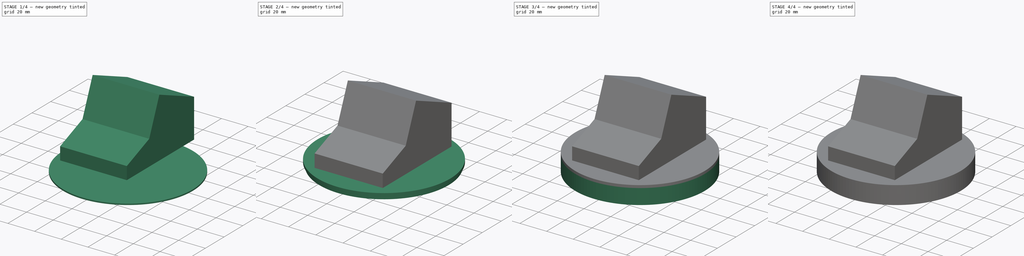
[diagram: build sequence overview — one tinted view per stage of 4, left to right]
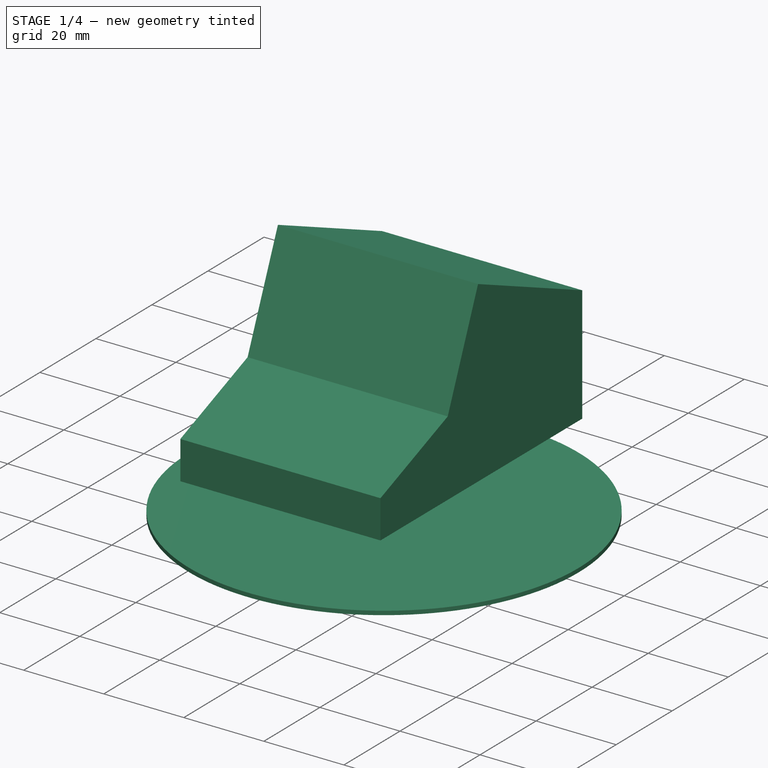
[diagram: stage 1 of 4 — iso view after this stage's code; geometry added in this stage tinted green]
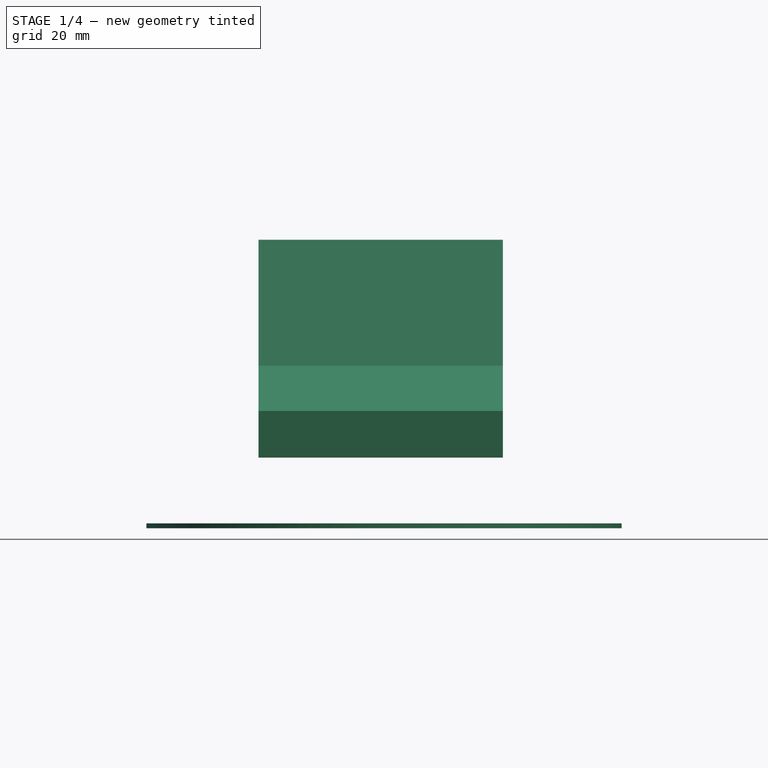
[diagram: stage 1 of 4 — front view after this stage's code; geometry added in this stage tinted green]
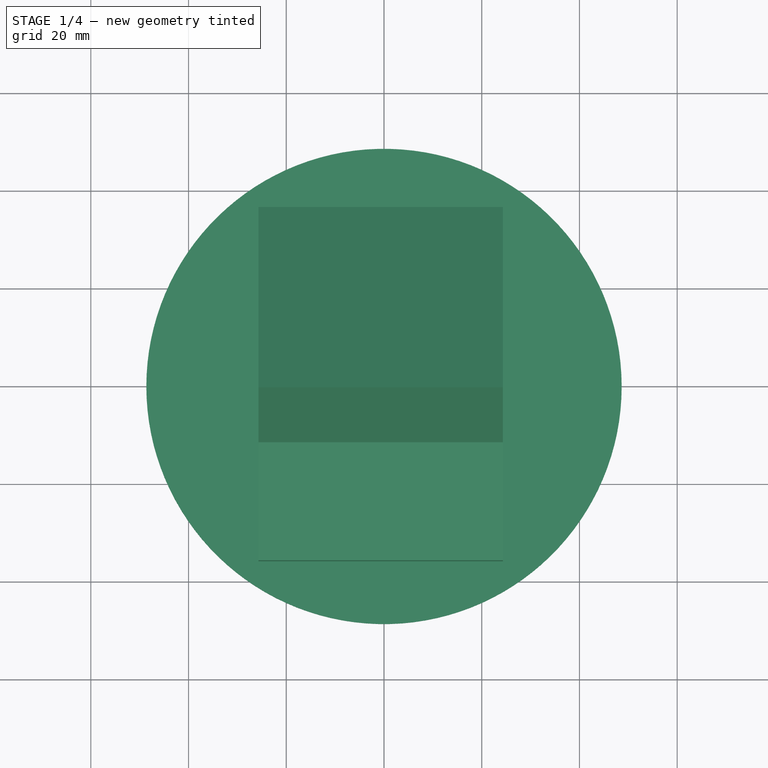
[diagram: stage 1 of 4 — top view after this stage's code; geometry added in this stage tinted green]
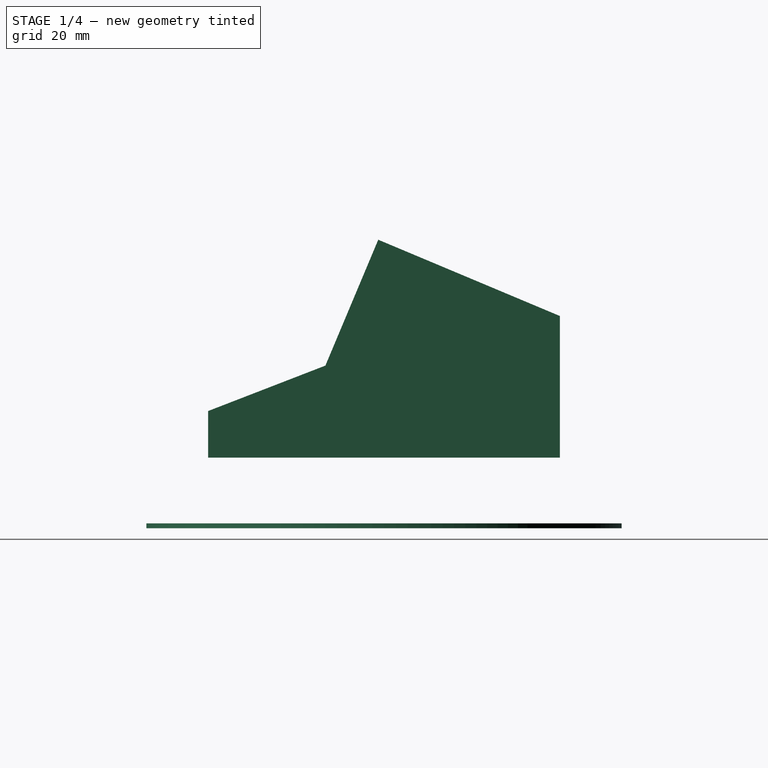
[diagram: stage 1 of 4 — right view after this stage's code; geometry added in this stage tinted green]
FCSTD DOCUMENT  (FreeCAD 0.20R29603 (Git))
Label: Picodoro
License: All rights reserved
LicenseURL: http://en.wikipedia.org/wiki/All_rights_reserved
objects: Sketcher::SketchObject×8, PartDesign::Pad×7, PartDesign::Plane×5, PartDesign::Body×3, PartDesign::PolarPattern×2, Spreadsheet::Sheet×1, PartDesign::Pocket×1
note: 34 computed .brp shape members not serialized (recipe doc carries the construction recipe); baked Part::Feature solids carry a one-line shape summary decoded from their .brp

FEATURE [Spreadsheet::Sheet] Spreadsheet  label="ss"
  cells = A1=Name; B1=Unit; A2=disp_pcb_width; B2(disp_pcb_width)==40.64mm; A3=disp_height; B3(disp_height)==16.256mm; A4=disp_hole_size; B4(disp_hole_size)==3.3mm; A5=disp_hole_x; B5(disp_hole_x)==17.78mm; A6=disp_hole_y; B6(disp_hole_y)==11.43mm; A7=disp_clearance; B7(disp_clearance)==0.3mm; A8=disp_extra_width; B8(disp_extra_width)==4mm; A9=np_height; B9(np_height)==10.2mm; A10=cherry_len; B10(cherry_len)==14mm; A11=disp_pcb_height; B11(disp_pcb_height)==27.94mm
FEATURE [Sketcher::SketchObject] Sketch
  FullyConstrained = true
  MapMode = 5
  Support = -> [XY_Plane]
  expr: .Constraints.BottomDiameter = 2 * (Spreadsheet.disp_extra_width * 2 + Spreadsheet.disp_pcb_width)
  sketch-geometry (1):
    g0: Circle CenterX=0 CenterY=0 CenterZ=0 NormalX=0 NormalY=0 NormalZ=1 AngleXU=0 Radius=48.64
  constraints (2):
    c: Coincident(g0,g-1)
    c: Diameter(g0) = 97.28  'BottomDiameter'
FEATURE [PartDesign::Pad] Pad  label="Bottom"
  Direction = (0,0,1)
  Length = 1
  Length2 = 10
  Profile = -> Sketch
  ReferenceAxis = -> Sketch [N_Axis]
  Refine = true
  Type = 0
FEATURE [PartDesign::Body] Body001  label="LED_Lid"
  Group = -> [DatumPlane002,Sketch004,Pad004,Sketch005,Pad005,Sketch006,Pocket,PolarPattern001]
  Origin = -> Origin001
  Tip = -> PolarPattern001
FEATURE [PartDesign::Plane] DatumPlane003  label="SkelBottomDatum"
  AttachmentOffset = pos=(0,0,13.5) rot=(0,0,1;0rad)
  Length = 62.7613
  MapMode = 5
  Placement = pos=(0,0,13.5) rot=(0,0,1;0rad)
  ResizeMode = 0
  Support = -> [XY_Plane002]
  Width = 84.0813
  expr: .AttachmentOffset.Base.z = Pad001.Length + <<Bottom>>.Length + Pad004.Length
FEATURE [PartDesign::Plane] DatumPlane004
  AttachmentOffset = pos=(0,0,24.32) rot=(0,0,1;0rad)
  Length = 87.5585
  MapMode = 5
  Placement = pos=(24.32,-5.4e-15,5.4e-15) rot=(0.57735,0.57735,0.57735;2.0944rad)
  ResizeMode = 0
  Support = -> [YZ_Plane002]
  Width = 99.6097
  expr: .AttachmentOffset.Base.z = Spreadsheet.disp_pcb_width / 2 + Spreadsheet.disp_extra_width
FEATURE [Sketcher::SketchObject] Sketch007
  FullyConstrained = false
  MapMode = 5
  Placement = pos=(24.32,-5.4e-15,5.4e-15) rot=(0.57735,0.57735,0.57735;2.0944rad)
  Support = -> [DatumPlane004]
  expr: Constraints[4] = Spreadsheet.disp_pcb_height
  sketch-geometry (6):
    g0: LineSegment StartX=-1.17563 StartY=59.0511 StartZ=0 EndX=-11.9932 EndY=33.2902 EndZ=0
    g1: LineSegment StartX=-11.9932 StartY=33.2902 StartZ=0 EndX=-36 EndY=23.9913 EndZ=0
    g2: LineSegment StartX=-36 StartY=23.9913 StartZ=0 EndX=-36 EndY=14.4552 EndZ=0
    g3: LineSegment StartX=-36 StartY=14.4552 StartZ=0 EndX=36 EndY=14.4552 EndZ=0
    g4: LineSegment StartX=-1.17563 StartY=59.0511 StartZ=0 EndX=36 EndY=43.4403 EndZ=0
    g5: LineSegment StartX=36 StartY=43.4403 StartZ=0 EndX=36 EndY=14.4552 EndZ=0
  constraints (12):
    c: Coincident(g1,g0)
    c: Coincident(g2,g1)
    c: Vertical(g2)
    c: Coincident(g3,g2)
    c: Distance(g0) = 27.94
    c: Distance(g3) = 72
    c: Coincident(g4,g0)
    c: Coincident(g5,g4)
    c: Coincident(g5,g3)
    c: Perpendicular(g4,g0)
    c: Perpendicular(g3,g5)
    c: Symmetric(g3,g2,g-2)
FEATURE [PartDesign::Pad] Pad006
  Direction = (1,-1e-16,1e-16)
  Length = 50
  Length2 = 10
  Placement = pos=(24.32,-5.4e-15,5.4e-15) rot=(0.57735,0.57735,0.57735;2.0944rad)
  Profile = -> Sketch007
  ReferenceAxis = -> Sketch007 [N_Axis]
  Refine = true
  Reversed = true
  Type = 0
FEATURE [PartDesign::Body] Body002  label="Skeleton"
  Group = -> [DatumPlane003,DatumPlane004,Sketch007,Pad006]
  Origin = -> Origin002
  Tip = -> Pad006
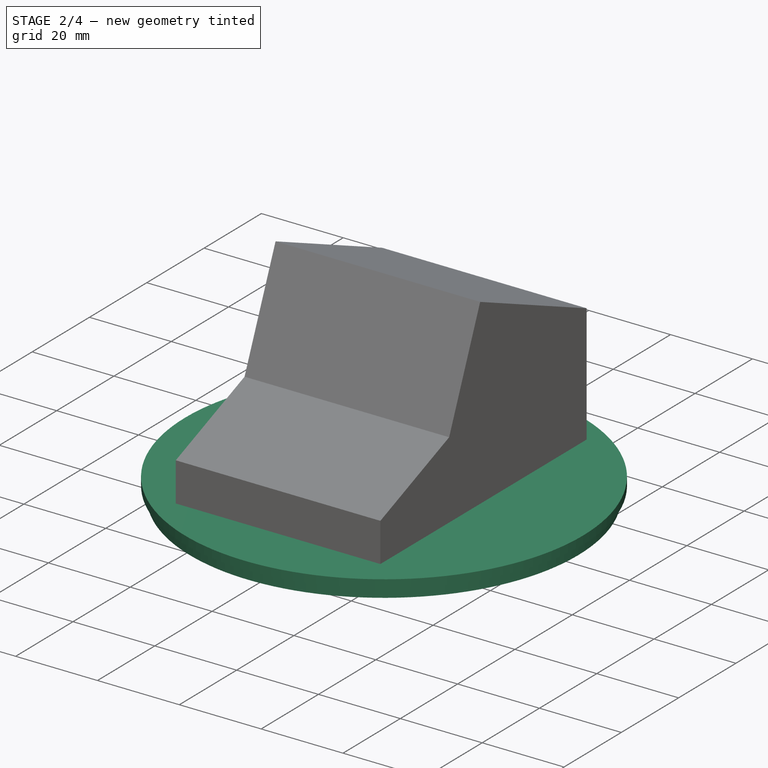
[diagram: stage 2 of 4 — iso view after this stage's code; geometry added in this stage tinted green]
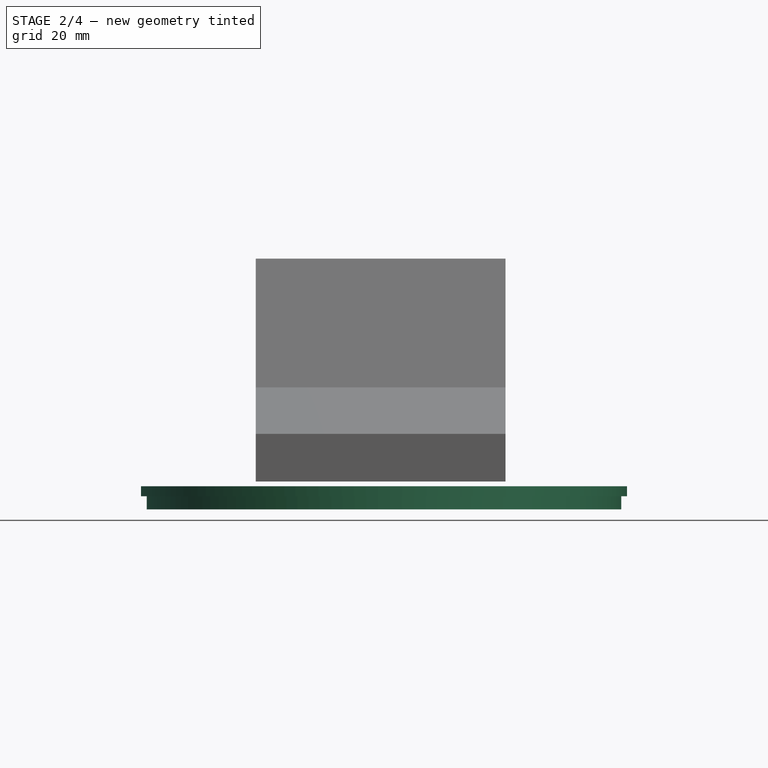
[diagram: stage 2 of 4 — front view after this stage's code; geometry added in this stage tinted green]
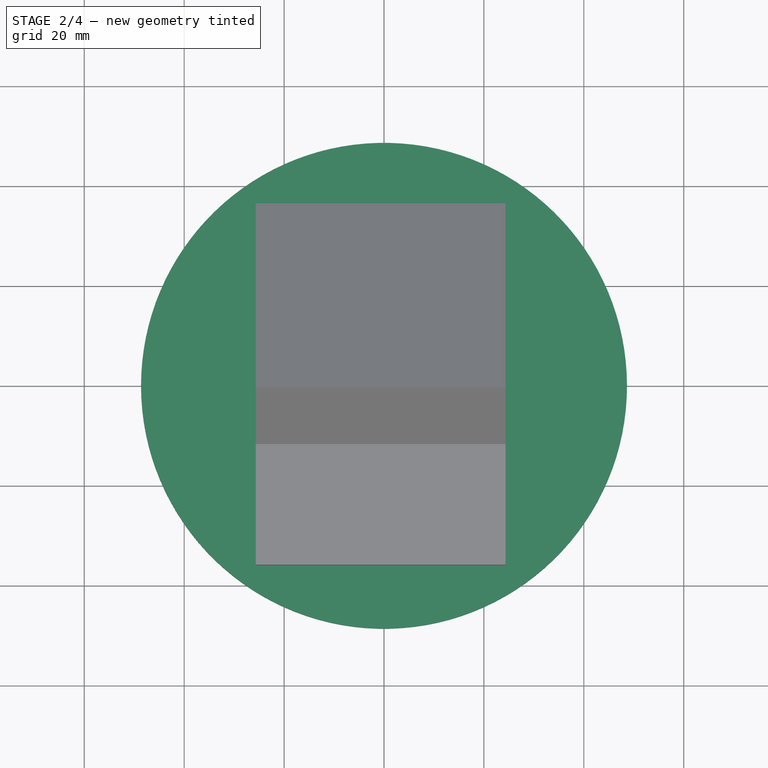
[diagram: stage 2 of 4 — top view after this stage's code; geometry added in this stage tinted green]
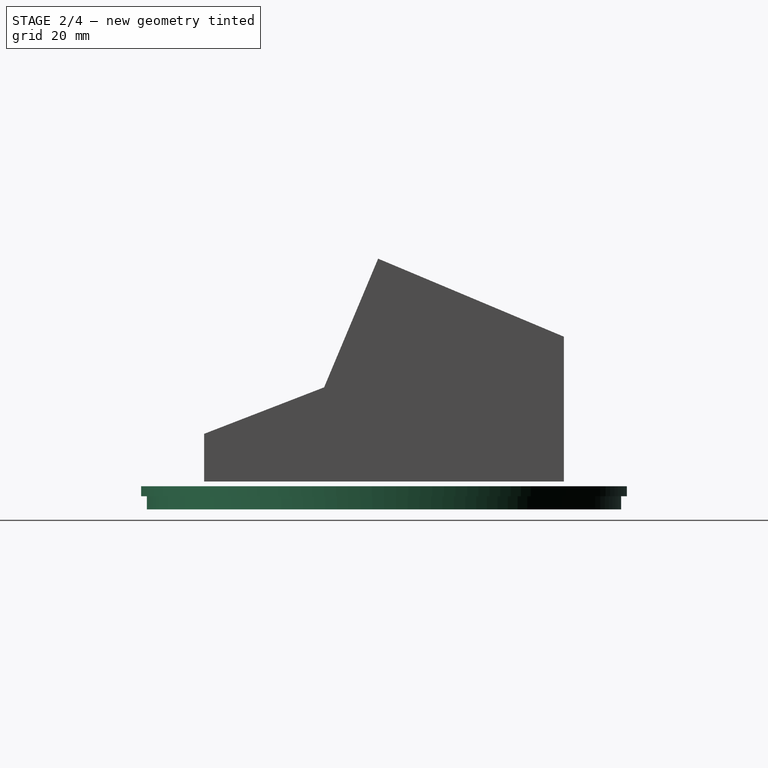
[diagram: stage 2 of 4 — right view after this stage's code; geometry added in this stage tinted green]
FEATURE [PartDesign::Plane] DatumPlane
  AttachmentOffset = pos=(0,0,1) rot=(0,0,1;0rad)
  Length = 116.736
  MapMode = 5
  Placement = pos=(0,0,1) rot=(0,0,1;0rad)
  ResizeMode = 0
  Support = -> [XY_Plane]
  Width = 116.736
  expr: .AttachmentOffset.Base.z = <<Bottom>>.Length
FEATURE [Sketcher::SketchObject] Sketch001
  FullyConstrained = true
  MapMode = 5
  Placement = pos=(0,0,1) rot=(0,0,1;0rad)
  Support = -> [DatumPlane]
  expr: .Constraints.InnerDiam = Sketch.Constraints.BottomDiameter - 2mm
  expr: .Constraints.OuterDiam = Sketch.Constraints.BottomDiameter
  sketch-geometry (2):
    g0: Circle CenterX=0 CenterY=0 CenterZ=0 NormalX=0 NormalY=0 NormalZ=1 AngleXU=0 Radius=48.64
    g1: Circle CenterX=0 CenterY=0 CenterZ=0 NormalX=0 NormalY=0 NormalZ=1 AngleXU=0 Radius=47.64
  constraints (4):
    c: Coincident(g0,g-1)
    c: Diameter(g0) = 97.28  'OuterDiam'
    c: Coincident(g1,g0)
    c: Diameter(g1) = 95.28  'InnerDiam'
FEATURE [PartDesign::Pad] Pad001
  BaseFeature = -> Pad
  Direction = (0,0,1)
  Length = 10.5
  Length2 = 10
  Profile = -> Sketch001
  ReferenceAxis = -> Sketch001 [N_Axis]
  Refine = true
  Type = 0
  expr: Length = Spreadsheet.np_height + 0.3mm
FEATURE [PartDesign::Body] Body  label="LED_Base"
  Group = -> [Sketch,Pad,DatumPlane,Sketch001,Pad001,Sketch002,Pad002,DatumPlane001,Sketch003,Pad003,PolarPattern]
  Origin = -> Origin
  Tip = -> PolarPattern
FEATURE [PartDesign::Plane] DatumPlane002
  AttachmentOffset = pos=(0,0,11.5) rot=(0,0,1;0rad)
  Length = 116.736
  MapMode = 5
  Placement = pos=(0,0,11.5) rot=(0,0,1;0rad)
  ResizeMode = 0
  Support = -> [XY_Plane001]
  Width = 116.736
  expr: .AttachmentOffset.Base.z = <<Pad001>>.Length + <<Bottom>>.Length
FEATURE [Sketcher::SketchObject] Sketch004
  FullyConstrained = true
  MapMode = 5
  Placement = pos=(0,0,11.5) rot=(0,0,1;0rad)
  Support = -> [DatumPlane002]
  expr: .Constraints.Diam = Sketch001.Constraints.OuterDiam
  sketch-geometry (1):
    g0: Circle CenterX=0 CenterY=0 CenterZ=0 NormalX=0 NormalY=0 NormalZ=1 AngleXU=0 Radius=48.64
  constraints (2):
    c: Coincident(g0,g-1)
    c: Diameter(g0) = 97.28  'Diam'
FEATURE [PartDesign::Pad] Pad004
  Direction = (0,0,1)
  Length = 2
  Length2 = 10
  Placement = pos=(0,0,11.5) rot=(0,0,1;0rad)
  Profile = -> Sketch004
  ReferenceAxis = -> Sketch004 [N_Axis]
  Refine = true
  Type = 0
FEATURE [Sketcher::SketchObject] Sketch005
  FullyConstrained = true
  MapMode = 5
  Placement = pos=(0,0,11.5) rot=(0,0,1;0rad)
  Support = -> [DatumPlane002]
  expr: .Constraints.Diam = Sketch001.Constraints.InnerDiam - 0.3mm
  expr: .Constraints.InnerDiam = .Constraints.Diam - 3mm
  sketch-geometry (2):
    g0: Circle CenterX=0 CenterY=0 CenterZ=0 NormalX=0 NormalY=0 NormalZ=1 AngleXU=0 Radius=47.49
    g1: Circle CenterX=0 CenterY=0 CenterZ=0 NormalX=0 NormalY=0 NormalZ=1 AngleXU=0 Radius=45.99
  constraints (4):
    c: Coincident(g0,g-1)
    c: Coincident(g1,g0)
    c: Diameter(g0) = 94.98  'Diam'
    c: Diameter(g1) = 91.98  'InnerDiam'
FEATURE [PartDesign::Pad] Pad005
  BaseFeature = -> Pad004
  Direction = (0,0,1)
  Length = 2.625
  Length2 = 10
  Placement = pos=(0,0,11.5) rot=(0,0,1;0rad)
  Profile = -> Sketch005
  ReferenceAxis = -> Sketch005 [N_Axis]
  Refine = true
  Reversed = true
  Type = 0
  expr: Length = Pad001.Length / 4
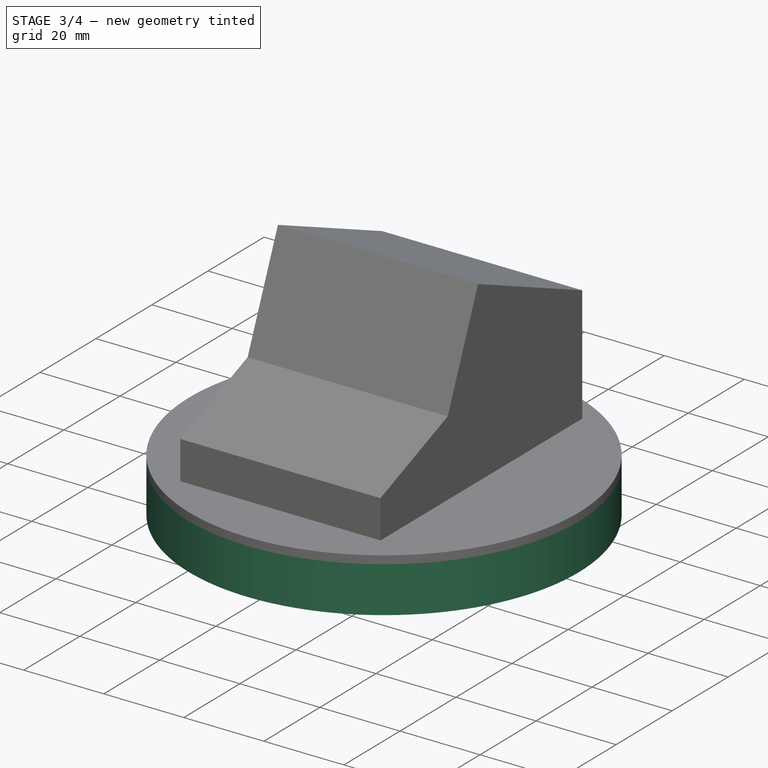
[diagram: stage 3 of 4 — iso view after this stage's code; geometry added in this stage tinted green]
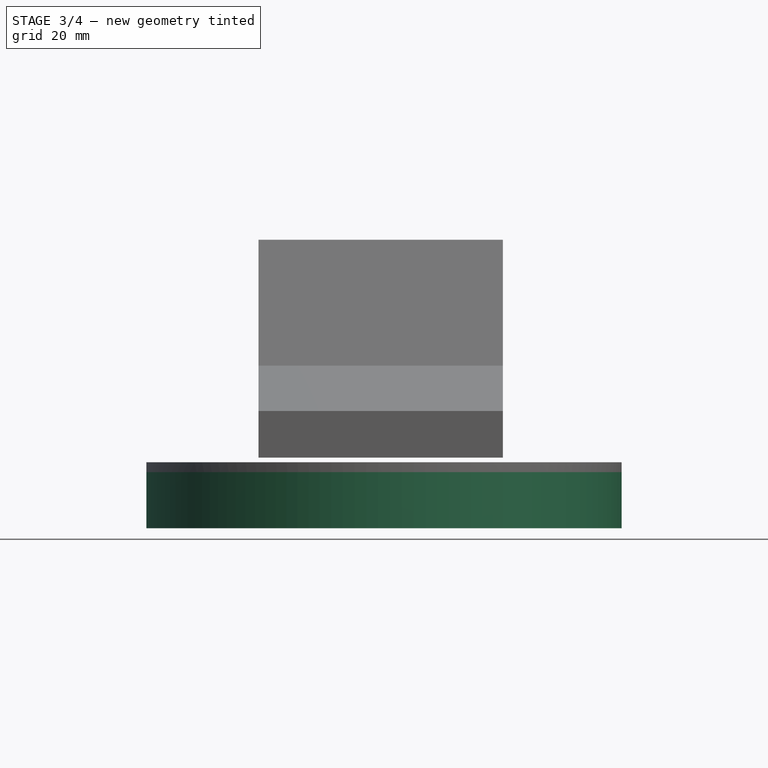
[diagram: stage 3 of 4 — front view after this stage's code; geometry added in this stage tinted green]
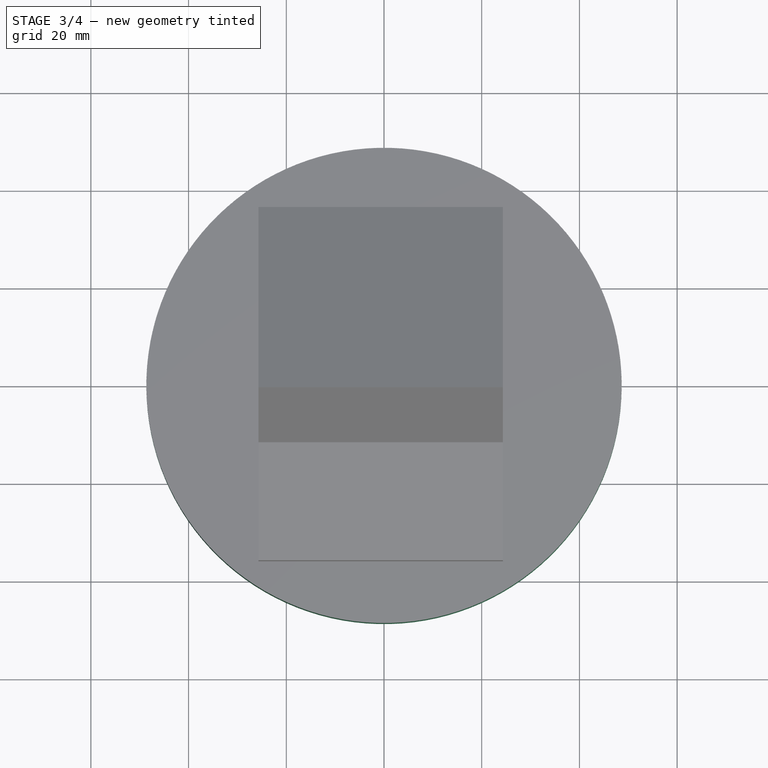
[diagram: stage 3 of 4 — top view after this stage's code; geometry added in this stage tinted green]
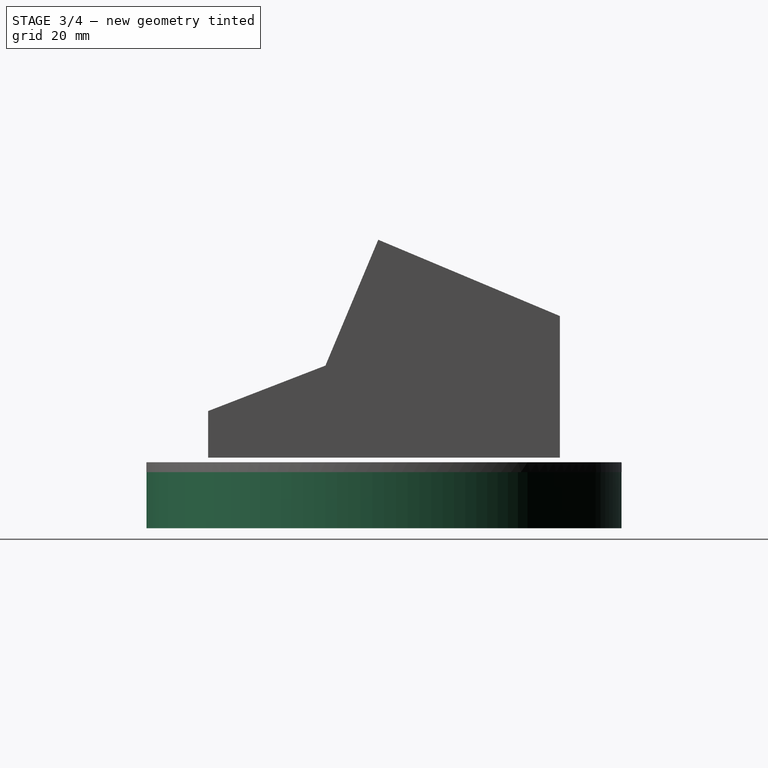
[diagram: stage 3 of 4 — right view after this stage's code; geometry added in this stage tinted green]
FEATURE [Sketcher::SketchObject] Sketch002
  FullyConstrained = true
  MapMode = 5
  Placement = pos=(0,0,1) rot=(0,0,1;0rad)
  Support = -> [DatumPlane]
  expr: .Constraints.Diam = Sketch.Constraints.BottomDiameter - 50mm
  expr: Constraints[3] = .Constraints.Diam - 2mm
  sketch-geometry (2):
    g0: Circle CenterX=0 CenterY=0 CenterZ=0 NormalX=0 NormalY=0 NormalZ=1 AngleXU=0 Radius=23.64
    g1: Circle CenterX=0 CenterY=0 CenterZ=0 NormalX=0 NormalY=0 NormalZ=1 AngleXU=0 Radius=22.64
  constraints (4):
    c: Coincident(g0,g-1)
    c: Diameter(g0) = 47.28  'Diam'
    c: Coincident(g1,g0)
    c: Diameter(g1) = 45.28
FEATURE [PartDesign::Pad] Pad002
  BaseFeature = -> Pad001
  Direction = (0,0,1)
  Length = 10.5
  Length2 = 10
  Profile = -> Sketch002
  ReferenceAxis = -> Sketch002 [N_Axis]
  Refine = true
  Type = 0
  expr: Length = Pad001.Length
FEATURE [Sketcher::SketchObject] Sketch006
  FullyConstrained = true
  MapMode = 5
  Placement = pos=(0,0,11.5) rot=(0,0,1;0rad)
  Support = -> [DatumPlane002]
  expr: Constraints[7] = Sketch003.Constraints.Width + 0.3 * 2mm
  expr: Constraints[8] = Sketch001.Constraints.OuterDiam / 2
  sketch-geometry (4):
    g0: LineSegment StartX=-1.3 StartY=48.64 StartZ=0 EndX=1.3 EndY=48.64 EndZ=0
    g1: LineSegment StartX=1.3 StartY=48.64 StartZ=0 EndX=1.3 EndY=42.64 EndZ=0
    g2: LineSegment StartX=1.3 StartY=42.64 StartZ=0 EndX=-1.3 EndY=42.64 EndZ=0
    g3: LineSegment StartX=-1.3 StartY=42.64 StartZ=0 EndX=-1.3 EndY=48.64 EndZ=0
  constraints (11):
    c: Coincident(g0,g1)
    c: Coincident(g1,g2)
    c: Coincident(g2,g3)
    c: Coincident(g3,g0)
    c: Horizontal(g2)
    c: Vertical(g1)
    c: Vertical(g3)
    c: DistanceX(g2,g2) = 2.6
    c: DistanceY(g-1,g0) = 48.64
    c: Symmetric(g0,g0,g-2)
    c: DistanceY(g1,g0) = 6
FEATURE [PartDesign::Pocket] Pocket
  BaseFeature = -> Pad005
  Direction = (0,0,-1)
  Length = 5.25
  Length2 = 5
  Placement = pos=(0,0,11.5) rot=(0,0,1;0rad)
  Profile = -> Sketch006
  ReferenceAxis = -> Sketch006 [N_Axis]
  Refine = true
  Type = 0
  expr: Length = Pad001.Length / 2
FEATURE [PartDesign::PolarPattern] PolarPattern001
  Angle = 360
  Axis = -> Sketch006 [N_Axis]
  BaseFeature = -> Pocket
  Occurrences = 4
  Originals = -> [Pocket]
  Placement = pos=(0,0,11.5) rot=(0,0,1;0rad)
  Refine = true
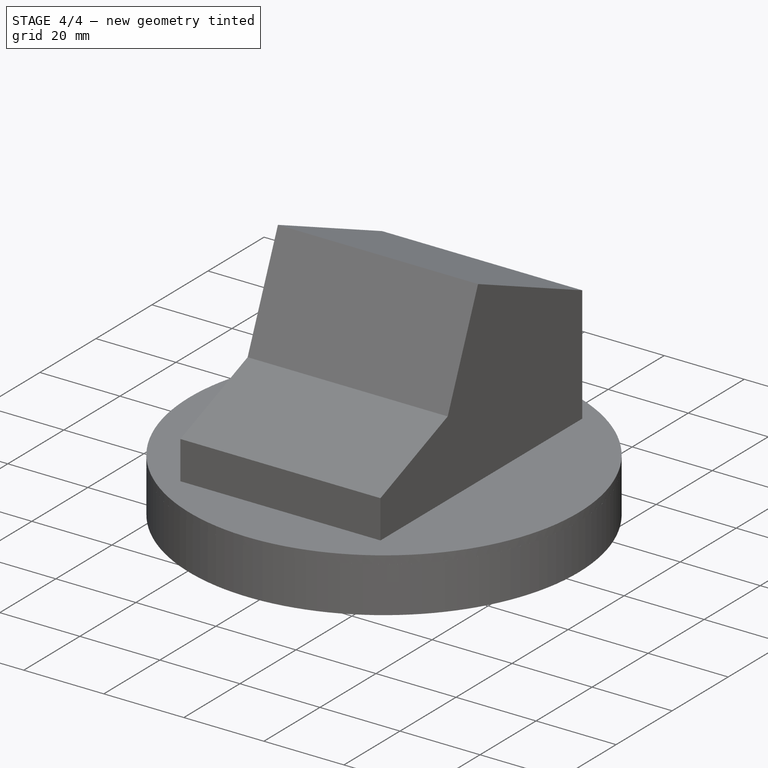
[diagram: stage 4 of 4 — iso view after this stage's code; geometry added in this stage tinted green]
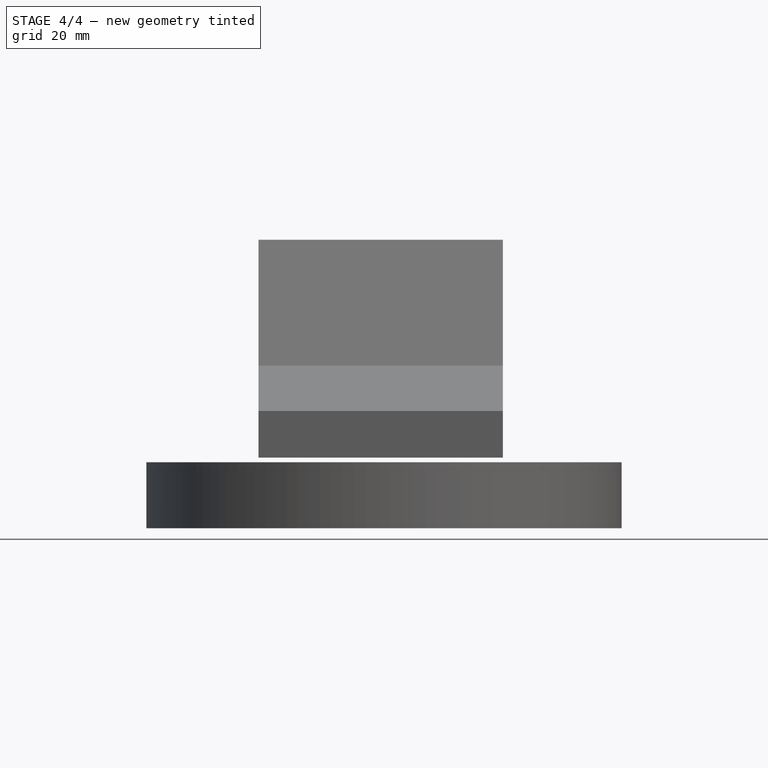
[diagram: stage 4 of 4 — front view after this stage's code; geometry added in this stage tinted green]
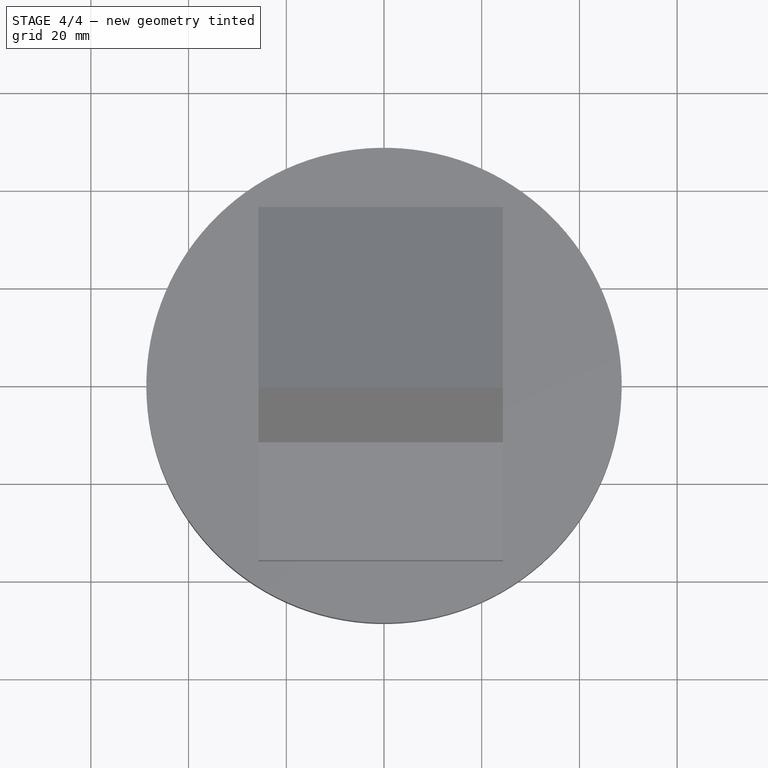
[diagram: stage 4 of 4 — top view after this stage's code; geometry added in this stage tinted green]
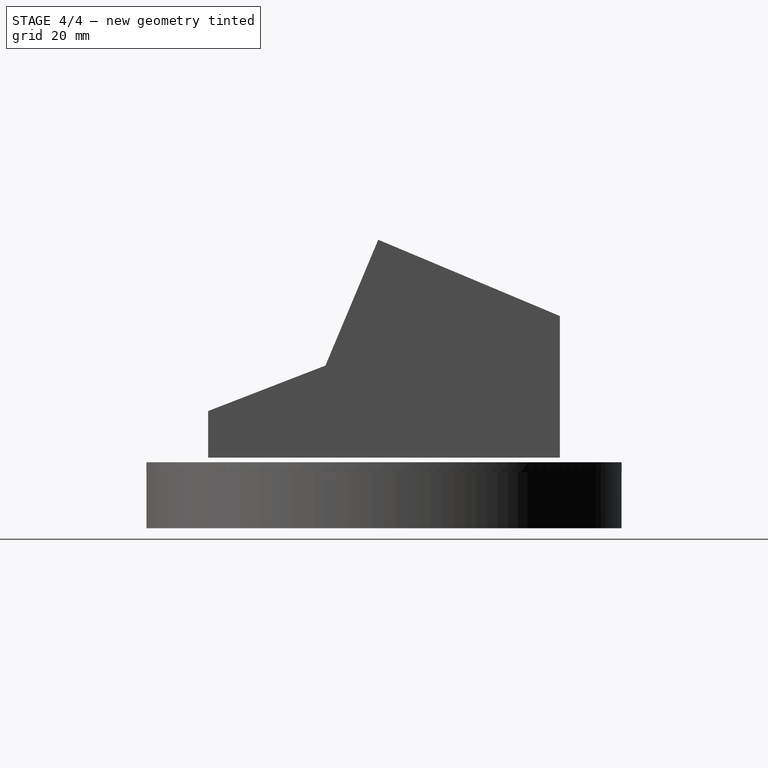
[diagram: stage 4 of 4 — right view after this stage's code; geometry added in this stage tinted green]
FEATURE [PartDesign::Plane] DatumPlane001
  AttachmentOffset = pos=(0,0,11.5) rot=(0,0,1;0rad)
  Length = 116.736
  MapMode = 5
  Placement = pos=(0,0,11.5) rot=(0,0,1;0rad)
  ResizeMode = 0
  Support = -> [XY_Plane]
  Width = 116.736
  expr: .AttachmentOffset.Base.z = <<Bottom>>.Length + Pad001.Length
FEATURE [Sketcher::SketchObject] Sketch003
  FullyConstrained = true
  MapMode = 5
  Placement = pos=(0,0,11.5) rot=(0,0,1;0rad)
  Support = -> [DatumPlane001]
  expr: Constraints[6] = Sketch001.Constraints.InnerDiam / 2
  sketch-geometry (4):
    g0: LineSegment StartX=-1 StartY=47.64 StartZ=0 EndX=1 EndY=47.64 EndZ=0
    g1: LineSegment StartX=1 StartY=47.64 StartZ=0 EndX=1 EndY=45.14 EndZ=0
    g2: LineSegment StartX=1 StartY=45.14 StartZ=0 EndX=-1 EndY=45.14 EndZ=0
    g3: LineSegment StartX=-1 StartY=45.14 StartZ=0 EndX=-1 EndY=47.64 EndZ=0
  constraints (11):
    c: Coincident(g0,g1)
    c: Coincident(g1,g2)
    c: Coincident(g2,g3)
    c: Coincident(g3,g0)
    c: Vertical(g1)
    c: Vertical(g3)
    c: DistanceY(g-1,g0) = 47.64
    c: Symmetric(g0,g0,g-2)
    c: Horizontal(g2)
    c: DistanceX(g2,g2) = 2  'Width'
    c: DistanceY(g1,g1) = 2.5
FEATURE [PartDesign::Pad] Pad003
  BaseFeature = -> Pad002
  Direction = (0,0,1)
  Length = 10.5
  Length2 = 10
  Profile = -> Sketch003
  ReferenceAxis = -> Sketch003 [N_Axis]
  Refine = true
  Reversed = true
  Type = 0
  expr: Length = Pad001.Length
FEATURE [PartDesign::PolarPattern] PolarPattern
  Angle = 360
  Axis = -> Sketch003 [N_Axis]
  BaseFeature = -> Pad003
  Occurrences = 4
  Originals = -> [Pad003]
  Refine = true
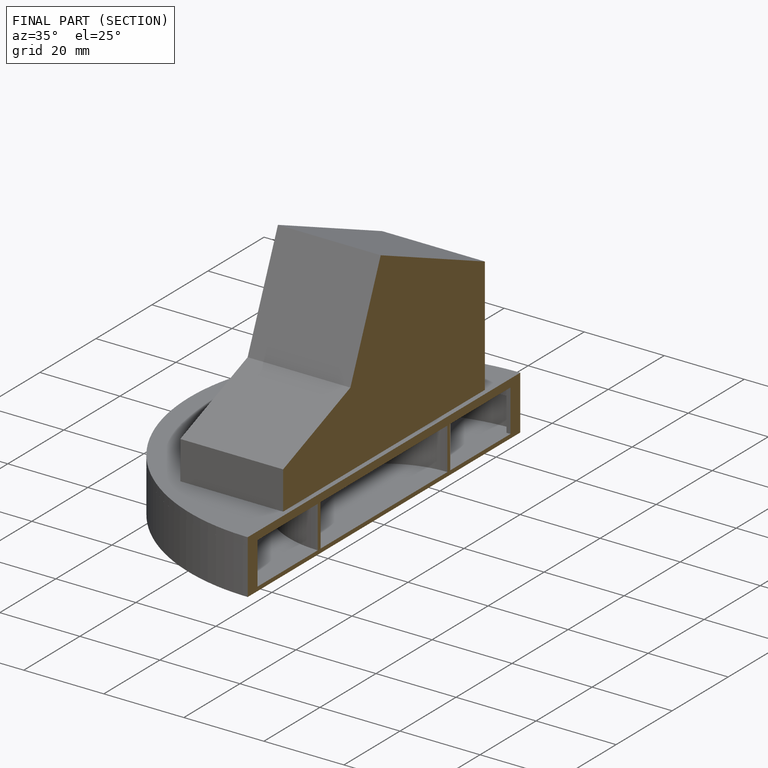
[diagram: finished part — half-section view (interior)]
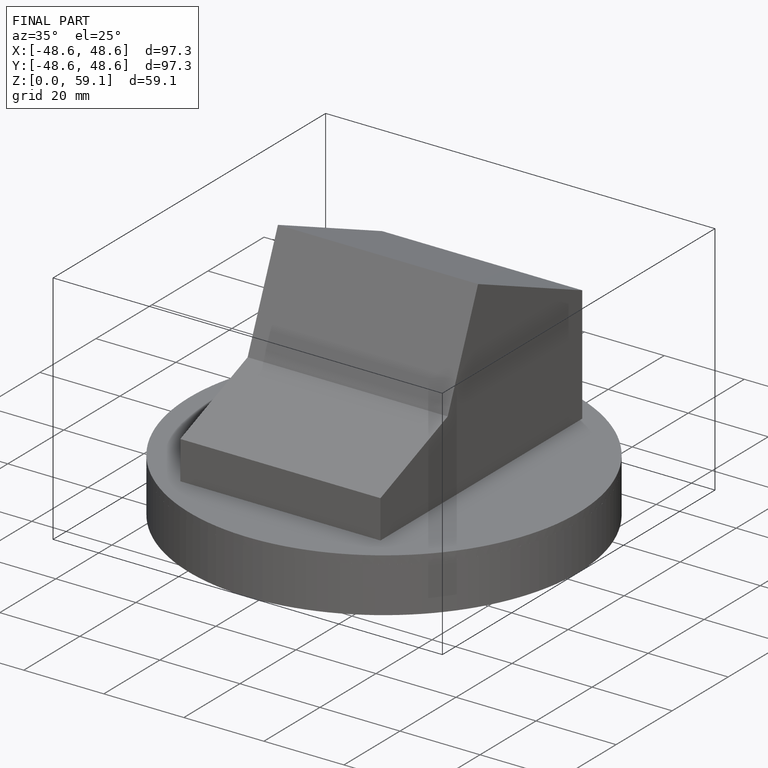
[diagram: finished part — iso view with bounding-box wireframe]
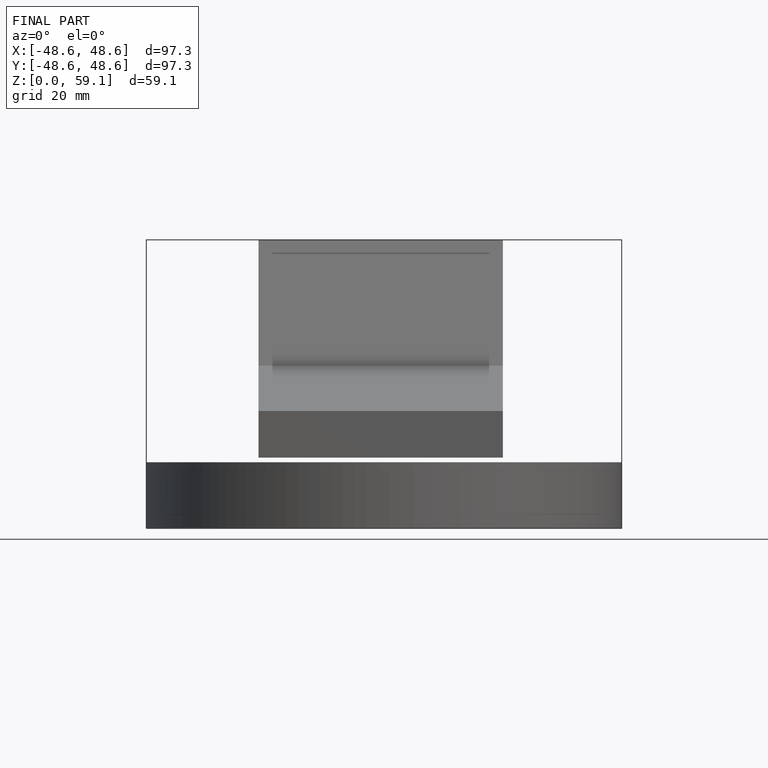
[diagram: finished part — front view with bounding-box wireframe]
